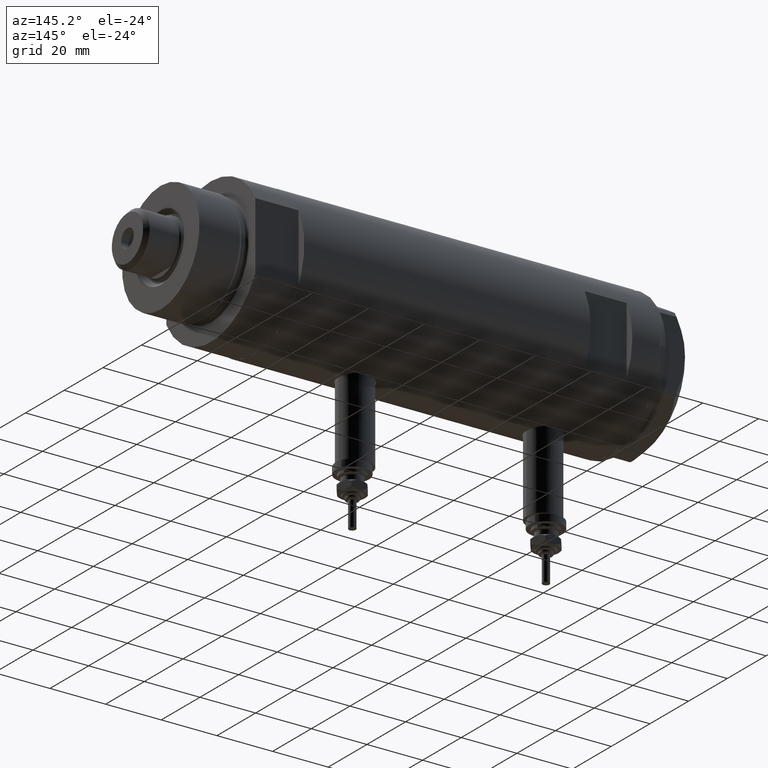
[diagram: clean part render]
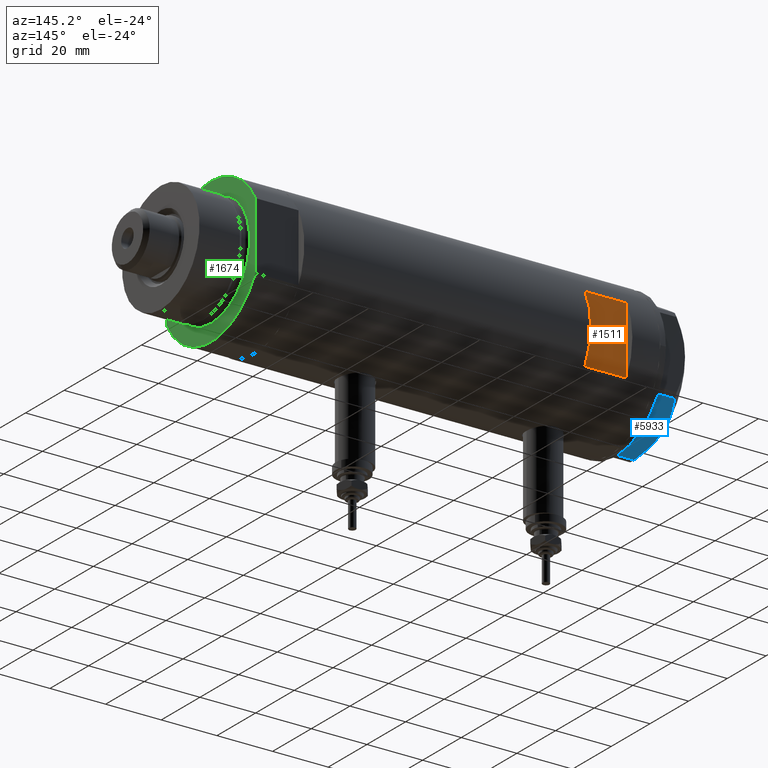
[diagram: same view with three faces highlighted in distinct colors, each labeled with its STEP entity id]
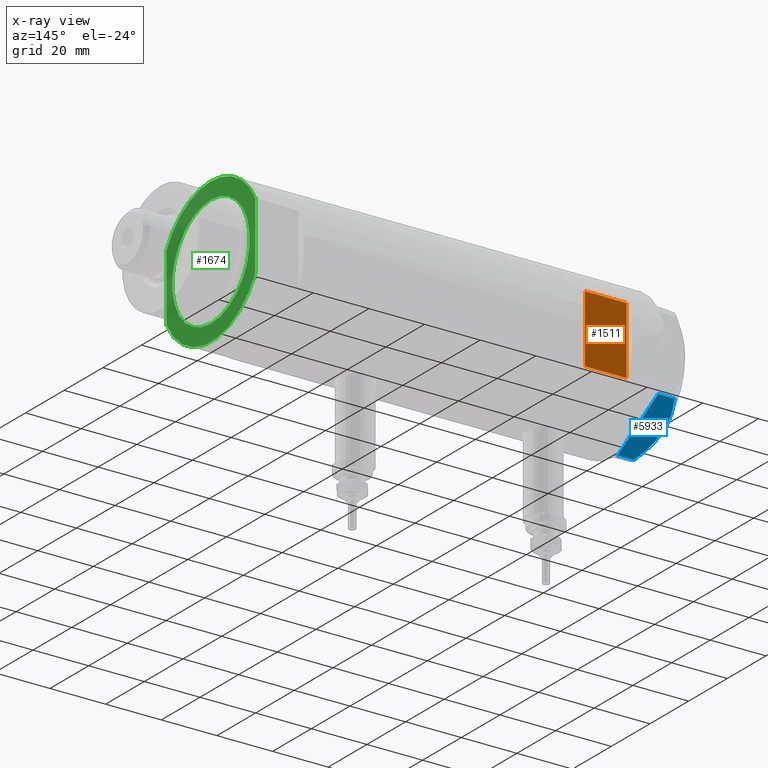
[diagram: x-ray of the same camera — body ghosted, the three highlighted faces saturated]
A machine part, auxiliary view with three faces highlighted in distinct colors.
The next image is the same camera in x-ray (body ghosted, the three faces saturated) — at least one of them is partly hidden behind the body in this view.
Their STEP definitions:

[orange] entity #1511 — the highlighted planar face has unit normal (0, -1, -0).
#116 = CARTESIAN_POINT ( 'NONE',  ( -26.00000000000000355, 23.00000000000000355, 53.94999999999999574 ) ) ;
#262 = CARTESIAN_POINT ( 'NONE',  ( -12.12435565298214080, 23.00000000000000355, 53.94999999999999574 ) ) ;
#322 = VECTOR ( 'NONE', #1244, 1000.000000000000000 ) ;
#334 = DIRECTION ( 'NONE',  ( 1.000000000000000000, -0.000000000000000000, -0.000000000000000000 ) ) ;
#495 = CARTESIAN_POINT ( 'NONE',  ( -12.12435565298214080, 23.00000000000000355, -63.95000000000000995 ) ) ;
#622 = DIRECTION ( 'NONE',  ( 0.000000000000000000, -1.000000000000000000, -0.000000000000000000 ) ) ;
#796 = VERTEX_POINT ( 'NONE', #2381 ) ;
#1244 = DIRECTION ( 'NONE',  ( 1.000000000000000000, -0.000000000000000000, -0.000000000000000000 ) ) ;
#1384 = CARTESIAN_POINT ( 'NONE',  ( 12.12435565298214080, 23.00000000000000355, 53.94999999999999574 ) ) ;
#1511 = ADVANCED_FACE ( 'NONE', ( #4009 ), #5962, .F. ) ;
#1559 = VECTOR ( 'NONE', #4365, 1000.000000000000000 ) ;
#1889 = CARTESIAN_POINT ( 'NONE',  ( -26.00000000000000355, 23.00000000000000355, 53.94999999999999574 ) ) ;
#2005 = VERTEX_POINT ( 'NONE', #1384 ) ;
#2033 = EDGE_CURVE ( 'NONE', #3458, #2005, #2750, .T. ) ;
#2381 = CARTESIAN_POINT ( 'NONE',  ( 12.12435565298213724, 23.00000000000000355, 38.94999999999999574 ) ) ;
#2412 = CARTESIAN_POINT ( 'NONE',  ( 12.12435565298214080, 23.00000000000000355, -63.95000000000000995 ) ) ;
#2468 = ORIENTED_EDGE ( 'NONE', *, *, #2033, .T. ) ;
#2570 = DIRECTION ( 'NONE',  ( 0.000000000000000000, 0.000000000000000000, -1.000000000000000000 ) ) ;
#2750 = LINE ( 'NONE', #1889, #4913 ) ;
#2794 = LINE ( 'NONE', #495, #3193 ) ;
#3193 = VECTOR ( 'NONE', #3817, 1000.000000000000000 ) ;
#3346 = EDGE_CURVE ( 'NONE', #5476, #796, #6007, .T. ) ;
#3458 = VERTEX_POINT ( 'NONE', #262 ) ;
#3817 = DIRECTION ( 'NONE',  ( 0.000000000000000000, 0.000000000000000000, 1.000000000000000000 ) ) ;
#3992 = ORIENTED_EDGE ( 'NONE', *, *, #3346, .F. ) ;
#4009 = FACE_OUTER_BOUND ( 'NONE', #4069, .T. ) ;
#4069 = EDGE_LOOP ( 'NONE', ( #6065, #3992, #5893, #2468 ) ) ;
#4191 = AXIS2_PLACEMENT_3D ( 'NONE', #116, #622, #2570 ) ;
#4365 = DIRECTION ( 'NONE',  ( -0.000000000000000000, -0.000000000000000000, -1.000000000000000000 ) ) ;
#4851 = LINE ( 'NONE', #2412, #1559 ) ;
#4913 = VECTOR ( 'NONE', #334, 1000.000000000000000 ) ;
#5476 = VERTEX_POINT ( 'NONE', #6147 ) ;
#5535 = CARTESIAN_POINT ( 'NONE',  ( -26.00000000000000355, 23.00000000000000355, 38.94999999999999574 ) ) ;
#5580 = EDGE_CURVE ( 'NONE', #2005, #796, #4851, .T. ) ;
#5893 = ORIENTED_EDGE ( 'NONE', *, *, #6134, .T. ) ;
#5962 = PLANE ( 'NONE',  #4191 ) ;
#6007 = LINE ( 'NONE', #5535, #322 ) ;
#6065 = ORIENTED_EDGE ( 'NONE', *, *, #5580, .T. ) ;
#6134 = EDGE_CURVE ( 'NONE', #5476, #3458, #2794, .T. ) ;
#6147 = CARTESIAN_POINT ( 'NONE',  ( -12.12435565298214080, 23.00000000000000355, 38.94999999999999574 ) ) ;

[blue] entity #5933 — the highlighted planar face has unit normal (0, -0.5, 0.866).
#43 = ORIENTED_EDGE ( 'NONE', *, *, #4979, .T. ) ;
#137 = VECTOR ( 'NONE', #281, 999.9999999999998863 ) ;
#210 = CARTESIAN_POINT ( 'NONE',  ( 22.03005154776138852, 13.83905619136154819, 5.983800287807532037 ) ) ;
#281 = DIRECTION ( 'NONE',  ( -0.8660254037844415942, 0.4999999999999949485, 0.000000000000000000 ) ) ;
#303 = CARTESIAN_POINT ( 'NONE',  ( 16.05322244309623869, 17.28978008384030929, 8.426899937603700153 ) ) ;
#341 = DIRECTION ( 'NONE',  ( -0.4999999999999949485, -0.8660254037844415942, 0.000000000000000000 ) ) ;
#386 = CARTESIAN_POINT ( 'NONE',  ( 5.671686373602799591, 23.28356272816407824, 8.040681765829278405 ) ) ;
#545 = EDGE_CURVE ( 'NONE', #3637, #2818, #5006, .T. ) ;
#607 = CARTESIAN_POINT ( 'NONE',  ( 0.9699484522385767304, 25.99811238272274849, 5.983800287807627960 ) ) ;
#776 = DIRECTION ( 'NONE',  ( -0.8660254037844415942, 0.4999999999999949485, 0.000000000000000000 ) ) ;
#791 = CARTESIAN_POINT ( 'NONE',  ( 22.03005154776124286, 13.83905619136163168, 0.000000000000000000 ) ) ;
#807 = CARTESIAN_POINT ( 'NONE',  ( 12.41906678023027588, 19.38796083407295967, 8.981686407609410949 ) ) ;
#843 = CARTESIAN_POINT ( 'NONE',  ( 22.03005154776138852, 13.83905619136154819, 5.983800287807532037 ) ) ;
#848 = EDGE_CURVE ( 'NONE', #3095, #4481, #4093, .T. ) ;
#1139 = CARTESIAN_POINT ( 'NONE',  ( 0.9699484522385816154, 25.99811238272274494, 9.000000000000000000 ) ) ;
#1148 = AXIS2_PLACEMENT_3D ( 'NONE', #1191, #341, #5197 ) ;
#1191 = CARTESIAN_POINT ( 'NONE',  ( 22.99999999999981171, 13.27905619136164184, 9.000000000000000000 ) ) ;
#1338 = CARTESIAN_POINT ( 'NONE',  ( 11.49999999999990408, 19.91858428704219364, 9.000000000000000000 ) ) ;
#1371 = CARTESIAN_POINT ( 'NONE',  ( 1.799196345396824492, 25.51934588838292228, 6.431317509509382191 ) ) ;
#1403 = CARTESIAN_POINT ( 'NONE',  ( 2.640413878806739945, 25.03366871902167290, 6.844201024438365089 ) ) ;
#1451 = ORIENTED_EDGE ( 'NONE', *, *, #5429, .F. ) ;
#1697 = B_SPLINE_CURVE_WITH_KNOTS ( 'NONE', 3,
 ( #843, #6186, #5291, #303, #2247, #2849, #4200, #807, #5228, #5324 ),
 .UNSPECIFIED., .F., .F.,
 ( 4, 2, 2, 2, 4 ),
 ( 0.001228959670438493522, 0.007497079744270714746, 0.01063113978118682655, 0.01219816979964488159, 0.01376519981810293489 ),
 .UNSPECIFIED. ) ;
#1941 = CARTESIAN_POINT ( 'NONE',  ( 3.925137811030050994, 24.29193301091819635, 7.397272853991373687 ) ) ;
#2053 = VECTOR ( 'NONE', #776, 999.9999999999998863 ) ;
#2093 = FACE_OUTER_BOUND ( 'NONE', #2230, .T. ) ;
#2162 = DIRECTION ( 'NONE',  ( 0.000000000000000000, 0.000000000000000000, 1.000000000000000000 ) ) ;
#2230 = EDGE_LOOP ( 'NONE', ( #1451, #5785, #4383, #6092, #6168, #43, #5033 ) ) ;
#2245 = CARTESIAN_POINT ( 'NONE',  ( 22.99999999999981171, 13.27905619136164184, 0.000000000000000000 ) ) ;
#2247 = CARTESIAN_POINT ( 'NONE',  ( 15.16323225988329959, 17.80361615569442790, 8.637313967156861949 ) ) ;
#2671 = VERTEX_POINT ( 'NONE', #6062 ) ;
#2784 = VECTOR ( 'NONE', #2162, 1000.000000000000000 ) ;
#2818 = VERTEX_POINT ( 'NONE', #791 ) ;
#2849 = CARTESIAN_POINT ( 'NONE',  ( 13.80210138309697498, 18.58946543380931260, 8.852712638955710034 ) ) ;
#2854 = CARTESIAN_POINT ( 'NONE',  ( 21.99999999999987210, 13.85640646055121827, 0.000000000000000000 ) ) ;
#2908 = CARTESIAN_POINT ( 'NONE',  ( 9.678244919010086988, 20.97037507344920826, 9.000000000000001776 ) ) ;
#2921 = LINE ( 'NONE', #4364, #4502 ) ;
#3076 = EDGE_CURVE ( 'NONE', #2671, #5865, #2921, .T. ) ;
#3095 = VERTEX_POINT ( 'NONE', #6215 ) ;
#3201 = LINE ( 'NONE', #2245, #2053 ) ;
#3556 = CARTESIAN_POINT ( 'NONE',  ( 0.9699484522385816154, 25.99811238272274494, 0.000000000000000000 ) ) ;
#3585 = DIRECTION ( 'NONE',  ( 0.000000000000000000, 0.000000000000000000, -1.000000000000000000 ) ) ;
#3637 = VERTEX_POINT ( 'NONE', #210 ) ;
#3799 = VERTEX_POINT ( 'NONE', #2854 ) ;
#3874 = LINE ( 'NONE', #5830, #137 ) ;
#4093 = B_SPLINE_CURVE_WITH_KNOTS ( 'NONE', 3,
 ( #1338, #2908, #5341, #386, #5279, #5306, #1941, #1403, #1371, #4318 ),
 .UNSPECIFIED., .F., .F.,
 ( 4, 2, 2, 2, 4 ),
 ( 0.01376519981810293489, 0.01998941321701561136, 0.02154546656674377961, 0.02310151991647194786, 0.02621362661592828783 ),
 .UNSPECIFIED. ) ;
#4171 = EDGE_CURVE ( 'NONE', #2818, #3799, #3201, .T. ) ;
#4200 = CARTESIAN_POINT ( 'NONE',  ( 13.34348161667005073, 18.85424967941157703, 8.907842277728345692 ) ) ;
#4318 = CARTESIAN_POINT ( 'NONE',  ( 0.9699484522385767304, 25.99811238272274849, 5.983800287807627960 ) ) ;
#4364 = CARTESIAN_POINT ( 'NONE',  ( 22.99999999999981171, 13.27905619136164184, 0.000000000000000000 ) ) ;
#4383 = ORIENTED_EDGE ( 'NONE', *, *, #4171, .T. ) ;
#4481 = VERTEX_POINT ( 'NONE', #607 ) ;
#4502 = VECTOR ( 'NONE', #6316, 999.9999999999998863 ) ;
#4979 = EDGE_CURVE ( 'NONE', #5865, #4481, #5942, .T. ) ;
#5006 = LINE ( 'NONE', #6082, #5570 ) ;
#5033 = ORIENTED_EDGE ( 'NONE', *, *, #848, .F. ) ;
#5197 = DIRECTION ( 'NONE',  ( 0.8660254037844415942, -0.4999999999999949485, 0.000000000000000000 ) ) ;
#5228 = CARTESIAN_POINT ( 'NONE',  ( 11.95865151389051917, 19.65378171203322566, 9.000000000000005329 ) ) ;
#5279 = CARTESIAN_POINT ( 'NONE',  ( 5.229981517798067081, 23.53858114556529912, 7.892128867758392730 ) ) ;
#5291 = CARTESIAN_POINT ( 'NONE',  ( 18.67981377008996446, 15.77331687414937278, 7.629374868826049649 ) ) ;
#5306 = CARTESIAN_POINT ( 'NONE',  ( 4.357207709416038632, 24.04247733877631532, 7.570552255229681116 ) ) ;
#5324 = CARTESIAN_POINT ( 'NONE',  ( 11.49999999999990408, 19.91858428704219364, 9.000000000000000000 ) ) ;
#5341 = CARTESIAN_POINT ( 'NONE',  ( 7.884645426989626671, 22.00591022298560517, 8.707651728476925257 ) ) ;
#5429 = EDGE_CURVE ( 'NONE', #3637, #3095, #1697, .T. ) ;
#5570 = VECTOR ( 'NONE', #3585, 1000.000000000000000 ) ;
#5605 = EDGE_CURVE ( 'NONE', #3799, #2671, #3874, .T. ) ;
#5785 = ORIENTED_EDGE ( 'NONE', *, *, #545, .T. ) ;
#5830 = CARTESIAN_POINT ( 'NONE',  ( 22.99999999999981171, 13.27905619136164184, 0.000000000000000000 ) ) ;
#5865 = VERTEX_POINT ( 'NONE', #3556 ) ;
#5933 = ADVANCED_FACE ( 'NONE', ( #2093 ), #6084, .F. ) ;
#5942 = LINE ( 'NONE', #1139, #2784 ) ;
#6062 = CARTESIAN_POINT ( 'NONE',  ( 0.9999999999999297229, 25.98076211353316722, 0.000000000000000000 ) ) ;
#6082 = CARTESIAN_POINT ( 'NONE',  ( 22.03005154776124286, 13.83905619136163168, 9.000000000000000000 ) ) ;
#6084 = PLANE ( 'NONE',  #1148 ) ;
#6092 = ORIENTED_EDGE ( 'NONE', *, *, #5605, .T. ) ;
#6168 = ORIENTED_EDGE ( 'NONE', *, *, #3076, .T. ) ;
#6186 = CARTESIAN_POINT ( 'NONE',  ( 20.37350567916420019, 14.79546339452108050, 6.877782426143415506 ) ) ;
#6215 = CARTESIAN_POINT ( 'NONE',  ( 11.49999999999990408, 19.91858428704219364, 9.000000000000000000 ) ) ;
#6316 = DIRECTION ( 'NONE',  ( -0.8660254037844415942, 0.4999999999999949485, 0.000000000000000000 ) ) ;

[green] entity #1674 — the highlighted planar face has unit normal (1, 0, -0).
#158 = EDGE_LOOP ( 'NONE', ( #6070, #4289, #585, #793, #2584 ) ) ;
#201 = VECTOR ( 'NONE', #2683, 1000.000000000000000 ) ;
#223 = DIRECTION ( 'NONE',  ( 0.000000000000000000, 0.000000000000000000, 1.000000000000000000 ) ) ;
#319 = CARTESIAN_POINT ( 'NONE',  ( 0.000000000000000000, 0.000000000000000000, 15.50000000000000000 ) ) ;
#397 = EDGE_CURVE ( 'NONE', #5657, #4537, #3012, .T. ) ;
#585 = ORIENTED_EDGE ( 'NONE', *, *, #3624, .F. ) ;
#611 = EDGE_CURVE ( 'NONE', #4795, #5657, #665, .T. ) ;
#665 = CIRCLE ( 'NONE', #5879, 26.00000000000000355 ) ;
#707 = DIRECTION ( 'NONE',  ( 1.000000000000000000, 0.000000000000000000, 0.000000000000000000 ) ) ;
#793 = ORIENTED_EDGE ( 'NONE', *, *, #611, .T. ) ;
#1003 = ORIENTED_EDGE ( 'NONE', *, *, #3001, .T. ) ;
#1159 = DIRECTION ( 'NONE',  ( 0.000000000000000000, 0.000000000000000000, 1.000000000000000000 ) ) ;
#1204 = CARTESIAN_POINT ( 'NONE',  ( 0.000000000000000000, 0.000000000000000000, 15.50000000000000000 ) ) ;
#1330 = CARTESIAN_POINT ( 'NONE',  ( -26.00000000000000355, 0.000000000000000000, 15.50000000000000000 ) ) ;
#1354 = AXIS2_PLACEMENT_3D ( 'NONE', #319, #6166, #4218 ) ;
#1480 = LINE ( 'NONE', #6101, #201 ) ;
#1674 = ADVANCED_FACE ( 'NONE', ( #2130, #2268 ), #4086, .T. ) ;
#1851 = CARTESIAN_POINT ( 'NONE',  ( -12.12435565298214613, 23.00000000000000355, 15.50000000000000000 ) ) ;
#1910 = VERTEX_POINT ( 'NONE', #3199 ) ;
#1911 = DIRECTION ( 'NONE',  ( -0.000000000000000000, -0.000000000000000000, -1.000000000000000000 ) ) ;
#1967 = CIRCLE ( 'NONE', #1354, 26.00000000000000355 ) ;
#2130 = FACE_BOUND ( 'NONE', #5339, .T. ) ;
#2190 = LINE ( 'NONE', #4045, #3481 ) ;
#2216 = CARTESIAN_POINT ( 'NONE',  ( 0.000000000000000000, 0.000000000000000000, 15.50000000000000000 ) ) ;
#2268 = FACE_OUTER_BOUND ( 'NONE', #158, .T. ) ;
#2333 = EDGE_CURVE ( 'NONE', #4971, #4537, #1480, .T. ) ;
#2487 = EDGE_CURVE ( 'NONE', #2938, #1910, #6012, .T. ) ;
#2584 = ORIENTED_EDGE ( 'NONE', *, *, #397, .T. ) ;
#2683 = DIRECTION ( 'NONE',  ( -1.000000000000000000, -0.000000000000000000, -0.000000000000000000 ) ) ;
#2938 = VERTEX_POINT ( 'NONE', #3679 ) ;
#3001 = EDGE_CURVE ( 'NONE', #1910, #2938, #5013, .T. ) ;
#3012 = CIRCLE ( 'NONE', #3724, 26.00000000000000355 ) ;
#3084 = DIRECTION ( 'NONE',  ( 1.000000000000000000, 0.000000000000000000, 0.000000000000000000 ) ) ;
#3107 = DIRECTION ( 'NONE',  ( 1.000000000000000000, 0.000000000000000000, 0.000000000000000000 ) ) ;
#3152 = DIRECTION ( 'NONE',  ( 1.000000000000000000, 0.000000000000000000, -0.000000000000000000 ) ) ;
#3199 = CARTESIAN_POINT ( 'NONE',  ( 20.00000000000000000, 0.000000000000000000, 15.50000000000000000 ) ) ;
#3481 = VECTOR ( 'NONE', #3084, 1000.000000000000000 ) ;
#3600 = CARTESIAN_POINT ( 'NONE',  ( 12.12435565298215323, -22.99999999999999645, 15.50000000000000000 ) ) ;
#3624 = EDGE_CURVE ( 'NONE', #4795, #5699, #2190, .T. ) ;
#3679 = CARTESIAN_POINT ( 'NONE',  ( -20.00000000000000000, 2.449293598294706513E-15, 15.50000000000000000 ) ) ;
#3724 = AXIS2_PLACEMENT_3D ( 'NONE', #3947, #5958, #4465 ) ;
#3880 = AXIS2_PLACEMENT_3D ( 'NONE', #6079, #6047, #707 ) ;
#3882 = AXIS2_PLACEMENT_3D ( 'NONE', #5853, #1911, #4903 ) ;
#3923 = CARTESIAN_POINT ( 'NONE',  ( 12.12435565298214790, 23.00000000000000355, 15.50000000000000000 ) ) ;
#3947 = CARTESIAN_POINT ( 'NONE',  ( 0.000000000000000000, 0.000000000000000000, 15.50000000000000000 ) ) ;
#4045 = CARTESIAN_POINT ( 'NONE',  ( -12.12435565298215145, 23.00000000000000355, 15.50000000000000000 ) ) ;
#4059 = CARTESIAN_POINT ( 'NONE',  ( -12.12435565298215323, -22.99999999999999645, 15.50000000000000000 ) ) ;
#4086 = PLANE ( 'NONE',  #5003 ) ;
#4218 = DIRECTION ( 'NONE',  ( 1.000000000000000000, 0.000000000000000000, 0.000000000000000000 ) ) ;
#4289 = ORIENTED_EDGE ( 'NONE', *, *, #5162, .T. ) ;
#4465 = DIRECTION ( 'NONE',  ( 1.000000000000000000, 0.000000000000000000, 0.000000000000000000 ) ) ;
#4537 = VERTEX_POINT ( 'NONE', #4059 ) ;
#4795 = VERTEX_POINT ( 'NONE', #1851 ) ;
#4903 = DIRECTION ( 'NONE',  ( 1.000000000000000000, 0.000000000000000000, 0.000000000000000000 ) ) ;
#4971 = VERTEX_POINT ( 'NONE', #3600 ) ;
#5003 = AXIS2_PLACEMENT_3D ( 'NONE', #1204, #223, #3152 ) ;
#5013 = CIRCLE ( 'NONE', #3880, 20.00000000000000000 ) ;
#5162 = EDGE_CURVE ( 'NONE', #4971, #5699, #1967, .T. ) ;
#5339 = EDGE_LOOP ( 'NONE', ( #1003, #5487 ) ) ;
#5487 = ORIENTED_EDGE ( 'NONE', *, *, #2487, .T. ) ;
#5657 = VERTEX_POINT ( 'NONE', #1330 ) ;
#5699 = VERTEX_POINT ( 'NONE', #3923 ) ;
#5853 = CARTESIAN_POINT ( 'NONE',  ( 0.000000000000000000, 0.000000000000000000, 15.50000000000000000 ) ) ;
#5879 = AXIS2_PLACEMENT_3D ( 'NONE', #2216, #1159, #3107 ) ;
#5958 = DIRECTION ( 'NONE',  ( 0.000000000000000000, 0.000000000000000000, 1.000000000000000000 ) ) ;
#6012 = CIRCLE ( 'NONE', #3882, 20.00000000000000000 ) ;
#6047 = DIRECTION ( 'NONE',  ( -0.000000000000000000, -0.000000000000000000, -1.000000000000000000 ) ) ;
#6070 = ORIENTED_EDGE ( 'NONE', *, *, #2333, .F. ) ;
#6079 = CARTESIAN_POINT ( 'NONE',  ( 0.000000000000000000, 0.000000000000000000, 15.50000000000000000 ) ) ;
#6101 = CARTESIAN_POINT ( 'NONE',  ( -12.12435565298215145, -22.99999999999999645, 15.50000000000000000 ) ) ;
#6166 = DIRECTION ( 'NONE',  ( 0.000000000000000000, 0.000000000000000000, 1.000000000000000000 ) ) ;